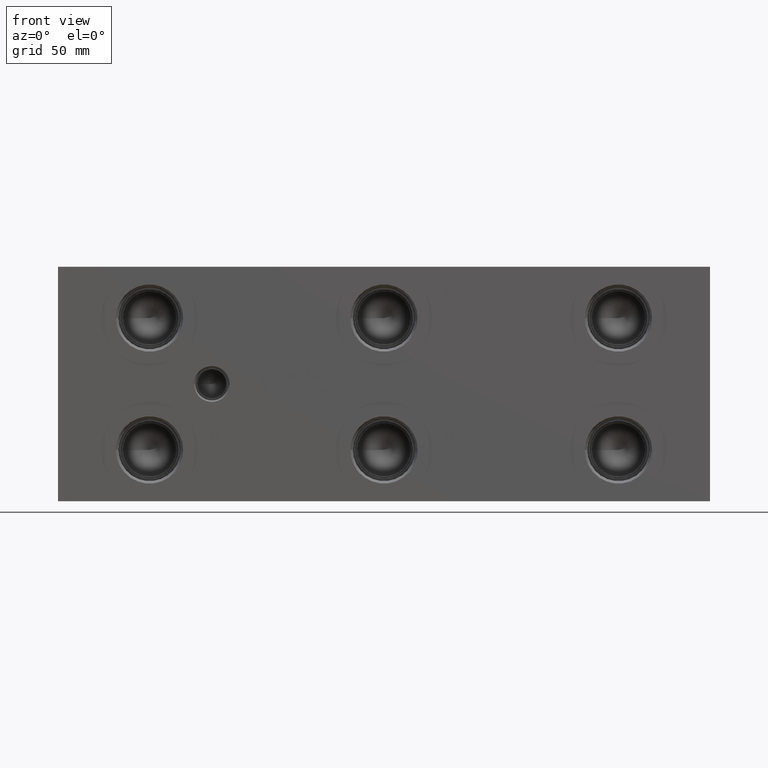
[diagram: clean part render]
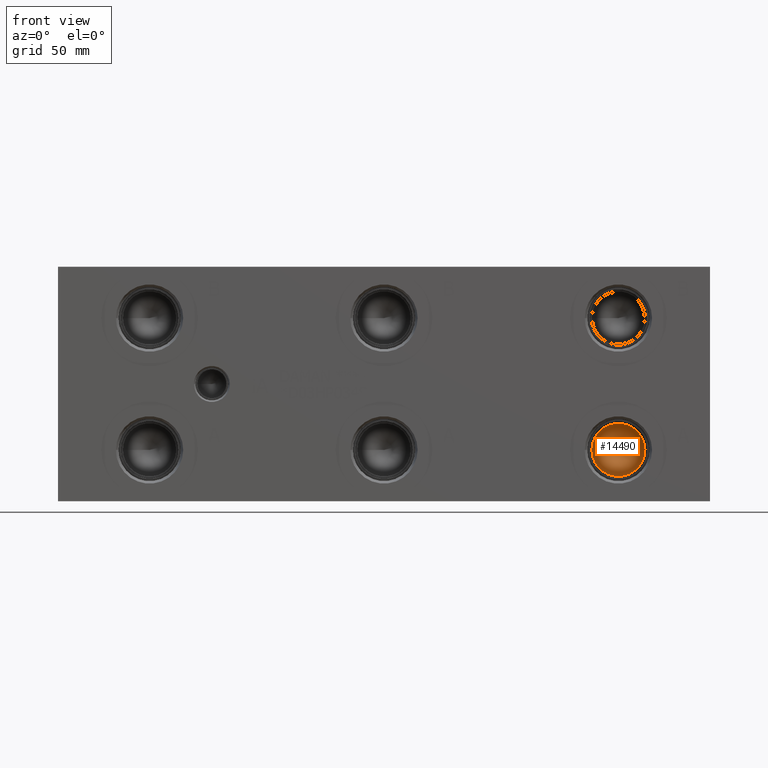
[diagram: same view with one face highlighted and labeled with its STEP entity id]
A machine part, front view. The second image highlights one B-rep face of the part: STEP entity #14490.
In plain terms, the highlighted conical surface has half-angle 60 deg.
Its self-contained STEP definition (entity closure, byte-faithful):
#17=CONICAL_SURFACE('',#15132,5.7531,1.0471975511966);
#407=CIRCLE('',#15133,11.5062);
#408=CIRCLE('',#15134,11.5062);
#1775=FACE_OUTER_BOUND('',#2602,.T.);
#2602=EDGE_LOOP('',(#11924,#11925,#11926,#11927));
#4012=LINE('',#24301,#5317);
#5317=VECTOR('',#17655,5.7531);
#6517=VERTEX_POINT('',#24297);
#6518=VERTEX_POINT('',#24298);
#6519=VERTEX_POINT('',#24300);
#8423=EDGE_CURVE('',#6517,#6518,#407,.T.);
#8424=EDGE_CURVE('',#6518,#6519,#4012,.T.);
#8425=EDGE_CURVE('',#6518,#6517,#408,.T.);
#11924=ORIENTED_EDGE('',*,*,#8423,.T.);
#11925=ORIENTED_EDGE('',*,*,#8424,.T.);
#11926=ORIENTED_EDGE('',*,*,#8424,.F.);
#11927=ORIENTED_EDGE('',*,*,#8425,.T.);
#14490=ADVANCED_FACE('',(#1775),#17,.F.);
#15132=AXIS2_PLACEMENT_3D('',#24296,#17651,#17652);
#15133=AXIS2_PLACEMENT_3D('',#24299,#17653,#17654);
#15134=AXIS2_PLACEMENT_3D('',#24302,#17656,#17657);
#17651=DIRECTION('center_axis',(0.,-1.,0.));
#17652=DIRECTION('ref_axis',(1.,0.,0.));
#17653=DIRECTION('center_axis',(0.,-1.,0.));
#17654=DIRECTION('ref_axis',(1.,0.,0.));
#17655=DIRECTION('',(0.866025403784439,0.5,1.06057523872491E-16));
#17656=DIRECTION('center_axis',(0.,-1.,0.));
#17657=DIRECTION('ref_axis',(1.,0.,0.));
#24296=CARTESIAN_POINT('Origin',(242.8748,34.1787738336748,22.225));
#24297=CARTESIAN_POINT('',(254.381,30.85722,22.225));
#24298=CARTESIAN_POINT('',(231.3686,30.85722,22.225));
#24299=CARTESIAN_POINT('Origin',(242.8748,30.85722,22.225));
#24300=CARTESIAN_POINT('',(242.8748,37.5003276673497,22.225));
#24301=CARTESIAN_POINT('',(237.1217,34.1787738336748,22.225));
#24302=CARTESIAN_POINT('Origin',(242.8748,30.85722,22.225));